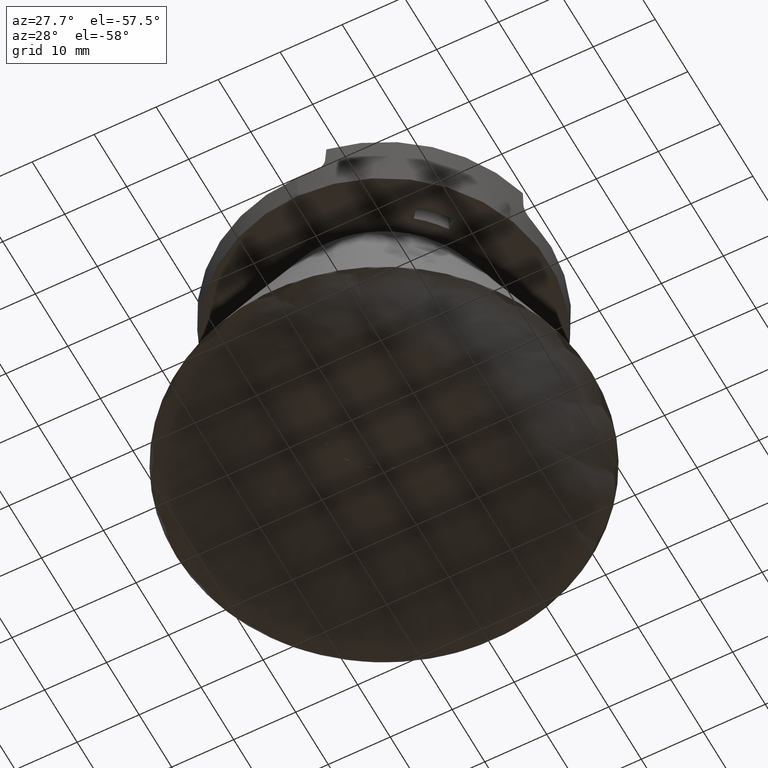
[diagram: clean part render]
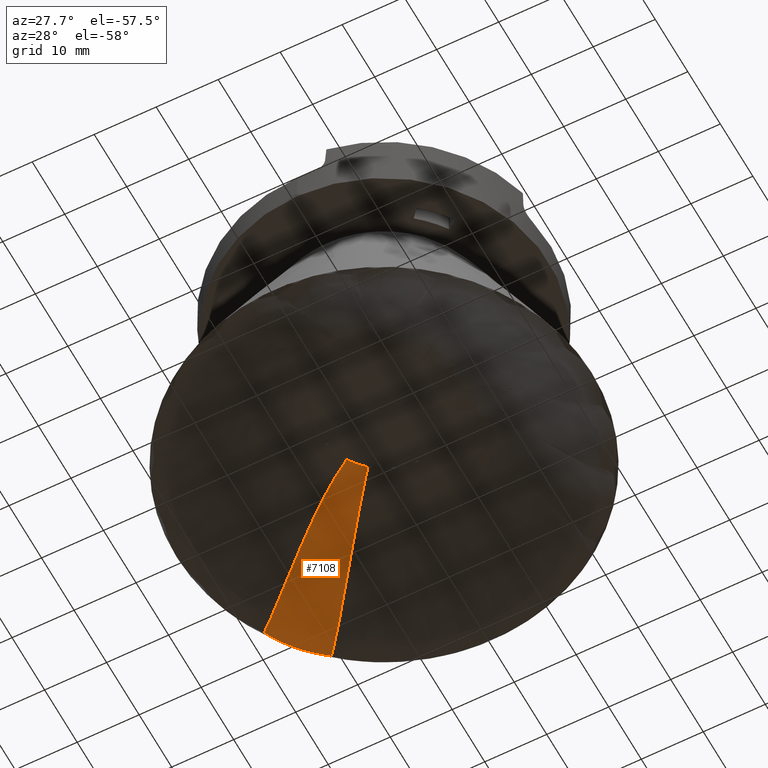
[diagram: same view with one face highlighted and labeled with its STEP entity id]
A machine part, auxiliary view. The second image highlights one B-rep face of the part: STEP entity #7108.
In plain terms, the highlighted face is a freeform B-spline surface patch.
Its self-contained STEP definition (entity closure, byte-faithful):
#61 = CARTESIAN_POINT ( 'NONE',  ( -7.451931950241363000, -6.977359682449465700, 24.00000000000001100 ) ) ;
#159 = CARTESIAN_POINT ( 'NONE',  ( -7.986065862173470400, -6.340803673977981200, 24.00000000000001400 ) ) ;
#524 = CARTESIAN_POINT ( 'NONE',  ( -20.61256006600509500, -19.48395648214994600, 37.81186950525387400 ) ) ;
#604 = CARTESIAN_POINT ( 'NONE',  ( -10.53422368254126500, -6.200838160505803400, 24.42143948671519400 ) ) ;
#696 = CARTESIAN_POINT ( 'NONE',  ( -22.83868224869295100, -13.45822711651566700, 34.66040913184525600 ) ) ;
#1203 = CARTESIAN_POINT ( 'NONE',  ( -6.647541966940536900, -7.727680457242454900, 24.05268427374969400 ) ) ;
#1418 = CARTESIAN_POINT ( 'NONE',  ( -8.764613175616997200, -5.204653238524492100, 24.05268427374969400 ) ) ;
#1458 = CARTESIAN_POINT ( 'NONE',  ( -21.19393652871518100, -24.49368781249510700, 39.39180819655563700 ) ) ;
#1568 = CARTESIAN_POINT ( 'NONE',  ( -13.84085859035317500, -16.29486297835242700, 29.90732477501512300 ) ) ;
#2170 = CARTESIAN_POINT ( 'NONE',  ( -28.25245156773059900, -16.91740970193194800, 39.61515855658598900 ) ) ;
#2463 = CARTESIAN_POINT ( 'NONE',  ( -7.064626316815426000, -7.368894177855226600, 24.01748694282373000 ) ) ;
#2716 = EDGE_LOOP ( 'NONE', ( #9637, #26513, #16576, #6810, #9943, #24172 ) ) ;
#2920 = CARTESIAN_POINT ( 'NONE',  ( -19.27499720263299900, -6.252571326929264700, 25.69935888278797300 ) ) ;
#2999 = CARTESIAN_POINT ( 'NONE',  ( -11.27007915859391900, -6.618422273990738300, 24.68382078541619200 ) ) ;
#3099 = CARTESIAN_POINT ( 'NONE',  ( -24.28605623423396800, -14.35838600116655300, 36.25082046820411800 ) ) ;
#3805 = VERTEX_POINT ( 'NONE', #13586 ) ;
#3860 = CARTESIAN_POINT ( 'NONE',  ( -20.66901636307686000, -23.93817648871310100, 38.96838497587688700 ) ) ;
#3965 = CARTESIAN_POINT ( 'NONE',  ( -12.07270003988478600, -14.23293756006455100, 27.73796040772611700 ) ) ;
#4056 = CARTESIAN_POINT ( 'NONE',  ( -26.23513009464560500, -20.85093765735345500, 39.00000000000000000 ) ) ;
#4082 = CARTESIAN_POINT ( 'NONE',  ( -25.66248884448588200, -21.53338492449893600, 38.99999999999999300 ) ) ;
#5330 = CARTESIAN_POINT ( 'NONE',  ( -13.25201817075617700, -14.55017836403556300, 24.15589425697410400 ) ) ;
#5419 = CARTESIAN_POINT ( 'NONE',  ( -12.70880508126319900, -7.439263454219373600, 25.32035916953121200 ) ) ;
#5459 = CARTESIAN_POINT ( 'NONE',  ( -7.808652132164918500, -6.552237124091199400, 24.00000000000000700 ) ) ;
#5516 = CARTESIAN_POINT ( 'NONE',  ( -25.39357046387102600, -15.05649351229425600, 37.40672678806231500 ) ) ;
#6264 = CARTESIAN_POINT ( 'NONE',  ( -19.85017457496253700, -23.06022347549832600, 38.13769535461057800 ) ) ;
#6364 = CARTESIAN_POINT ( 'NONE',  ( -22.32993162307256800, -24.45548902538810100, 39.42616226214670400 ) ) ;
#6368 = CARTESIAN_POINT ( 'NONE',  ( -10.19278934242035100, -12.01088311079944000, 25.86045026769083300 ) ) ;
#6810 = ORIENTED_EDGE ( 'NONE', *, *, #9127, .F. ) ;
#7108 = ADVANCED_FACE ( 'NONE', ( #21355 ), #29444, .F. ) ;
#7260 = CARTESIAN_POINT ( 'NONE',  ( -8.624967904946084100, -5.439815260496559700, 24.03518703873789200 ) ) ;
#7717 = CARTESIAN_POINT ( 'NONE',  ( -11.41575732337142500, -1.118589835439520500, 24.95773928514173100 ) ) ;
#7796 = CARTESIAN_POINT ( 'NONE',  ( -15.30112274767569100, -8.941856929638371200, 27.06859308905876900 ) ) ;
#7849 = B_SPLINE_CURVE_WITH_KNOTS ( 'NONE', 3,
 ( #26694, #10083, #14866, #604, #17240, #2999, #19611, #5419, #22020, #7796, #24429, #10186, #26792, #12595, #29183, #14970, #696, #17333, #3099, #19710, #5516, #22121, #7890, #24526, #10284, #26895, #12700, #29282 ),
 .UNSPECIFIED., .F., .F.,
 ( 4, 2, 2, 2, 2, 2, 2, 2, 2, 2, 2, 2, 2, 4 ),
 ( 5.666395304208661300E-016, 0.001767011362761908400, 0.002650517044142577900, 0.003534022725523247300, 0.007068045451045917900, 0.01060206817656858900, 0.01413609090209126200, 0.01767011362761392400, 0.02120413635313658800, 0.02297114771589791500, 0.02473815907865923500, 0.02650517044142055800, 0.02738867612280121800, 0.02827218180418187800 ),
 .UNSPECIFIED. ) ;
#7890 = CARTESIAN_POINT ( 'NONE',  ( -26.54811025790985500, -15.79646976346712300, 38.48944996035238800 ) ) ;
#8644 = CARTESIAN_POINT ( 'NONE',  ( -18.94066688742902100, -22.06771454410599300, 37.02631597382378500 ) ) ;
#8743 = CARTESIAN_POINT ( 'NONE',  ( -23.05893347229468300, -23.96768335394525100, 39.27271433132451500 ) ) ;
#8750 = CARTESIAN_POINT ( 'NONE',  ( -8.653294407840991900, -10.16479318029936600, 24.78370212819588800 ) ) ;
#9025 = B_SPLINE_CURVE_WITH_KNOTS ( 'NONE', 3,
 ( #28633, #7260, #26248, #14423, #159, #16791 ),
 .UNSPECIFIED., .F., .F.,
 ( 4, 2, 4 ),
 ( 0.001960043688144421900, 0.002781617606586539800, 0.003603191525028657600 ),
 .UNSPECIFIED. ) ;
#9127 = EDGE_CURVE ( 'NONE', #12919, #17982, #9025, .T. ) ;
#9637 = ORIENTED_EDGE ( 'NONE', *, *, #25569, .F. ) ;
#9943 = ORIENTED_EDGE ( 'NONE', *, *, #22676, .T. ) ;
#10007 = CARTESIAN_POINT ( 'NONE',  ( -26.93900756075138100, -20.21267640163266000, 38.72349801172714500 ) ) ;
#10083 = CARTESIAN_POINT ( 'NONE',  ( -9.281444207873590800, -5.494180344226237800, 24.10556549297107400 ) ) ;
#10105 = CARTESIAN_POINT ( 'NONE',  ( -6.279556309574836300, -8.194519778166020200, 23.64152275277335100 ) ) ;
#10186 = CARTESIAN_POINT ( 'NONE',  ( -17.68802421487390600, -10.34739143050296300, 29.15699180343184000 ) ) ;
#10284 = CARTESIAN_POINT ( 'NONE',  ( -27.37251161421093600, -16.33531417137547200, 39.11879068411898400 ) ) ;
#11033 = CARTESIAN_POINT ( 'NONE',  ( -18.07107453821067000, -21.10554461435312800, 35.85557279947834500 ) ) ;
#11135 = CARTESIAN_POINT ( 'NONE',  ( -24.42522799677163200, -22.83602694233466200, 39.07060055067019300 ) ) ;
#11143 = CARTESIAN_POINT ( 'NONE',  ( -8.116020426256838500, -9.515683923108667800, 24.50264204973599300 ) ) ;
#11651 = CARTESIAN_POINT ( 'NONE',  ( -25.66248884448588200, -21.53338492449893600, 38.99999999999999300 ) ) ;
#11780 = EDGE_CURVE ( 'NONE', #26912, #23924, #26111, .T. ) ;
#12120 = VERTEX_POINT ( 'NONE', #1203 ) ;
#12411 = CARTESIAN_POINT ( 'NONE',  ( -21.97068057836742800, -25.35299413173024900, 39.79966890645383200 ) ) ;
#12595 = CARTESIAN_POINT ( 'NONE',  ( -19.94631317876499200, -11.69707302005667600, 31.45464014280854300 ) ) ;
#12700 = CARTESIAN_POINT ( 'NONE',  ( -28.02217408263425800, -16.76490555196069500, 39.51463012185291000 ) ) ;
#12919 = VERTEX_POINT ( 'NONE', #1418 ) ;
#13441 = CARTESIAN_POINT ( 'NONE',  ( -16.66255364118949000, -19.52622984816320100, 33.85203765495946000 ) ) ;
#13536 = CARTESIAN_POINT ( 'NONE',  ( -25.37600834065941400, -21.87479909414232900, 38.99999999999999300 ) ) ;
#13543 = CARTESIAN_POINT ( 'NONE',  ( -7.390666762729726900, -8.635408698267903900, 24.20771523157613800 ) ) ;
#13586 = CARTESIAN_POINT ( 'NONE',  ( -21.56638296470598300, -24.88555597991767200, 39.61515855658607400 ) ) ;
#14047 = CARTESIAN_POINT ( 'NONE',  ( -27.58210095728311400, -18.55379927205798700, 39.28191040472712800 ) ) ;
#14334 = CARTESIAN_POINT ( 'NONE',  ( -7.808652132164918500, -6.552237124091199400, 24.00000000000000700 ) ) ;
#14423 = CARTESIAN_POINT ( 'NONE',  ( -8.156416128038133100, -6.120117762398238300, 24.00443321388629100 ) ) ;
#14790 = CARTESIAN_POINT ( 'NONE',  ( -22.76728489548578000, -16.91605542556436200, 37.81186950525387400 ) ) ;
#14866 = CARTESIAN_POINT ( 'NONE',  ( -9.787795162553685200, -5.778976518386695500, 24.20775589380851800 ) ) ;
#14970 = CARTESIAN_POINT ( 'NONE',  ( -22.12296146755683400, -13.01869133351174300, 33.85198921249791200 ) ) ;
#15605 = EDGE_CURVE ( 'NONE', #17982, #12120, #22777, .T. ) ;
#15699 = CARTESIAN_POINT ( 'NONE',  ( -21.56638296470598300, -24.88555597991767200, 39.61515855658607400 ) ) ;
#15807 = CARTESIAN_POINT ( 'NONE',  ( -14.98305654999512300, -17.61216286674772700, 31.45470646478208100 ) ) ;
#15911 = CARTESIAN_POINT ( 'NONE',  ( -6.647541966940536900, -7.727680457242454900, 24.05268427374969400 ) ) ;
#16405 = CARTESIAN_POINT ( 'NONE',  ( -28.10634262299095500, -17.33253325262206700, 39.52024679499555000 ) ) ;
#16576 = ORIENTED_EDGE ( 'NONE', *, *, #15605, .F. ) ;
#16791 = CARTESIAN_POINT ( 'NONE',  ( -7.808652132164918500, -6.552237124091199400, 24.00000000000000700 ) ) ;
#17160 = CARTESIAN_POINT ( 'NONE',  ( -18.22243726298033900, -21.61823403594842900, 38.79631210744406600 ) ) ;
#17240 = CARTESIAN_POINT ( 'NONE',  ( -10.78084400596857300, -6.340561201712602300, 24.50277541826165300 ) ) ;
#17333 = CARTESIAN_POINT ( 'NONE',  ( -23.92288314814280200, -14.13157625245553100, 35.85554007028128600 ) ) ;
#17669 = B_SPLINE_CURVE_WITH_KNOTS ( 'NONE', 3,
 ( #15699, #29930, #1458, #18093, #3860, #20461, #6264, #22880, #8644, #25271, #11033, #27648, #13441, #30032, #15807, #1568, #18203, #3965, #20570, #6368, #22986, #8750, #25371, #11143, #27748, #13543, #30139, #15911 ),
 .UNSPECIFIED., .F., .F.,
 ( 4, 2, 2, 2, 2, 2, 2, 2, 2, 2, 2, 2, 2, 4 ),
 ( 3.049328091328272700E-015, 0.0008735591537225795800, 0.001747118307442109900, 0.003494236614881158500, 0.005241354922320208200, 0.006988473229759257000, 0.01048270984463736500, 0.01397694645951547500, 0.01747118307439358300, 0.02096541968927169100, 0.02445965630414979900, 0.02533321545786932800, 0.02620677461158885800, 0.02795389291902790700 ),
 .UNSPECIFIED. ) ;
#17982 = VERTEX_POINT ( 'NONE', #5459 ) ;
#18093 = CARTESIAN_POINT ( 'NONE',  ( -20.84033603329739000, -24.12006965755396600, 39.11879499834947200 ) ) ;
#18203 = CARTESIAN_POINT ( 'NONE',  ( -13.26173699955787400, -15.62255891743847000, 29.15705687887682600 ) ) ;
#19076 = CARTESIAN_POINT ( 'NONE',  ( -6.647541966940536900, -7.727680457242454900, 24.05268427374969400 ) ) ;
#19530 = CARTESIAN_POINT ( 'NONE',  ( -16.63031726637358800, -10.52407827997571800, 24.15589425697407900 ) ) ;
#19611 = CARTESIAN_POINT ( 'NONE',  ( -11.51352665029155800, -6.757036075137309100, 24.78392812430975300 ) ) ;
#19710 = CARTESIAN_POINT ( 'NONE',  ( -25.02144635428491900, -14.82088307894749400, 37.02629301832499900 ) ) ;
#20341 = CARTESIAN_POINT ( 'NONE',  ( -26.73447588860283400, -20.11962883199697300, 39.05641079755785200 ) ) ;
#20461 = CARTESIAN_POINT ( 'NONE',  ( -20.16652669326734300, -23.40176717640567000, 38.48946012115828800 ) ) ;
#20562 = CARTESIAN_POINT ( 'NONE',  ( -21.56638296470598300, -24.88555597991767200, 39.61515855658607400 ) ) ;
#20570 = CARTESIAN_POINT ( 'NONE',  ( -11.46301080534060900, -13.51591414986229000, 27.06857575763390900 ) ) ;
#21355 = FACE_OUTER_BOUND ( 'NONE', #2716, .T. ) ;
#21941 = CARTESIAN_POINT ( 'NONE',  ( -9.504648857794249400, -17.89641906778782900, 25.69935888278802200 ) ) ;
#22020 = CARTESIAN_POINT ( 'NONE',  ( -13.59853979107385200, -7.952368327260963100, 25.86056381161560200 ) ) ;
#22045 = B_SPLINE_CURVE_WITH_KNOTS ( 'NONE', 3,
 ( #20562, #6364, #8743, #25365, #11135, #27743, #13536, #30133 ),
 .UNSPECIFIED., .F., .F.,
 ( 4, 2, 2, 4 ),
 ( 0.0007042587947961141600, 0.003373889748260220400, 0.004708705224992278800, 0.006043520701724337600 ),
 .UNSPECIFIED. ) ;
#22121 = CARTESIAN_POINT ( 'NONE',  ( -26.15681887707630100, -15.54423062154822200, 38.13768209047812300 ) ) ;
#22676 = EDGE_CURVE ( 'NONE', #12919, #23924, #7849, .T. ) ;
#22777 = B_SPLINE_CURVE_WITH_KNOTS ( 'NONE', 3,
 ( #14334, #61, #2463, #19076 ),
 .UNSPECIFIED., .F., .F.,
 ( 4, 4 ),
 ( 0.003603191525028657600, 0.005255104246981437100 ),
 .UNSPECIFIED. ) ;
#22880 = CARTESIAN_POINT ( 'NONE',  ( -19.23731459077517400, -22.39326969920999500, 37.40674647053547400 ) ) ;
#22986 = CARTESIAN_POINT ( 'NONE',  ( -9.532896025888668100, -11.22366590620469800, 25.32018400032549000 ) ) ;
#23924 = VERTEX_POINT ( 'NONE', #26294 ) ;
#24172 = ORIENTED_EDGE ( 'NONE', *, *, #11780, .F. ) ;
#24244 = CARTESIAN_POINT ( 'NONE',  ( -28.78299382753682100, -17.23439534315543400, 39.79966890645380300 ) ) ;
#24355 = CARTESIAN_POINT ( 'NONE',  ( -9.160460119464289600, -4.761192312811892300, 23.64152275277333000 ) ) ;
#24429 = CARTESIAN_POINT ( 'NONE',  ( -16.11308438503088100, -9.417750172912160900, 27.73794022378512000 ) ) ;
#24526 = CARTESIAN_POINT ( 'NONE',  ( -27.16363100375402000, -16.19818170981140800, 38.96837926281062200 ) ) ;
#25271 = CARTESIAN_POINT ( 'NONE',  ( -18.35750092787581900, -21.42381291987505800, 36.25084994244011900 ) ) ;
#25365 = CARTESIAN_POINT ( 'NONE',  ( -24.09134248264708900, -23.13202596565336200, 39.11233206393289700 ) ) ;
#25371 = CARTESIAN_POINT ( 'NONE',  ( -8.474546169260959200, -9.949154381502634000, 24.68362932533164100 ) ) ;
#25569 = EDGE_CURVE ( 'NONE', #3805, #26912, #22045, .T. ) ;
#26111 = B_SPLINE_CURVE_WITH_KNOTS ( 'NONE', 3,
 ( #11651, #4056, #20341, #28249, #14047, #30625, #16405, #2170 ),
 .UNSPECIFIED., .F., .F.,
 ( 4, 2, 2, 4 ),
 ( 0.006043520701724337600, 0.008711661790275921800, 0.01004573233455171100, 0.01137980287882750200 ),
 .UNSPECIFIED. ) ;
#26248 = CARTESIAN_POINT ( 'NONE',  ( -8.475500420274185500, -5.669996305578610700, 24.02204281210947200 ) ) ;
#26294 = CARTESIAN_POINT ( 'NONE',  ( -28.25245156773059900, -16.91740970193194800, 39.61515855658598900 ) ) ;
#26513 = ORIENTED_EDGE ( 'NONE', *, *, #26527, .T. ) ;
#26527 = EDGE_CURVE ( 'NONE', #3805, #12120, #17669, .T. ) ;
#26610 = CARTESIAN_POINT ( 'NONE',  ( -24.58351000053504300, -23.01984908136739300, 38.72349801172715900 ) ) ;
#26694 = CARTESIAN_POINT ( 'NONE',  ( -8.764613175616997200, -5.204653238524492100, 24.05268427374969400 ) ) ;
#26713 = CARTESIAN_POINT ( 'NONE',  ( -3.083921398272873000, -11.04808523208130000, 24.95773928514177000 ) ) ;
#26792 = CARTESIAN_POINT ( 'NONE',  ( -18.45067442328055300, -10.80096814781986800, 29.90725176803506000 ) ) ;
#26895 = CARTESIAN_POINT ( 'NONE',  ( -27.80185879923776300, -16.61866655988405500, 39.39180635792562400 ) ) ;
#26912 = VERTEX_POINT ( 'NONE', #4082 ) ;
#27648 = CARTESIAN_POINT ( 'NONE',  ( -17.21969147034236200, -20.15474788665697800, 34.66045141062137000 ) ) ;
#27743 = CARTESIAN_POINT ( 'NONE',  ( -25.07019349352467700, -22.20497255161420800, 39.01414237198055400 ) ) ;
#27748 = CARTESIAN_POINT ( 'NONE',  ( -7.935629691394724200, -9.297114626555194100, 24.42133202144575700 ) ) ;
#28249 = CARTESIAN_POINT ( 'NONE',  ( -27.38230813995075200, -18.95503070831124500, 39.21594549743858200 ) ) ;
#28633 = CARTESIAN_POINT ( 'NONE',  ( -8.764613175616997200, -5.204653238524492100, 24.05268427374969400 ) ) ;
#29001 = CARTESIAN_POINT ( 'NONE',  ( -24.45409750840101600, -14.19163055064175600, 38.79631210744404500 ) ) ;
#29183 = CARTESIAN_POINT ( 'NONE',  ( -20.67668185307808300, -12.13802717396051500, 32.24956834300664400 ) ) ;
#29282 = CARTESIAN_POINT ( 'NONE',  ( -28.25245156773059900, -16.91740970193194800, 39.61515855658598900 ) ) ;
#29444 =( BOUNDED_SURFACE ( )  B_SPLINE_SURFACE ( 3, 3, ( 
 ( #24244, #10007, #26610, #12411 ),
 ( #29001, #14790, #524, #17160 ),
 ( #2920, #19530, #5330, #21941 ),
 ( #7717, #24355, #10105, #26713 ) ),
 .UNSPECIFIED., .F., .F., .F. ) 
 B_SPLINE_SURFACE_WITH_KNOTS ( ( 4, 4 ),
 ( 4, 4 ),
 ( 0.0000000000000000000, 1.009796491166669700 ),
 ( 0.0000000000000000000, 1.000000000000000000 ),
 .UNSPECIFIED. ) 
 GEOMETRIC_REPRESENTATION_ITEM ( )  RATIONAL_B_SPLINE_SURFACE ( (
 ( 1.000000000000000000, 0.9640303269292728200, 0.9640303269292728200, 1.000000000000000000),
 ( 1.000000000000000000, 0.9640303269292728200, 0.9640303269292728200, 1.000000000000000000),
 ( 1.000000000000000000, 0.9640303269292728200, 0.9640303269292728200, 1.000000000000000000),
 ( 1.000000000000000000, 0.9640303269292728200, 0.9640303269292728200, 1.000000000000000000) ) ) 
 REPRESENTATION_ITEM ( '' )  SURFACE ( )  );
#29930 = CARTESIAN_POINT ( 'NONE',  ( -21.37620985843529200, -24.68526049965359100, 39.51463087704381400 ) ) ;
#30032 = CARTESIAN_POINT ( 'NONE',  ( -15.54413346978992800, -18.25485835344903100, 32.24962824037049800 ) ) ;
#30133 = CARTESIAN_POINT ( 'NONE',  ( -25.66248884448588200, -21.53338492449893600, 38.99999999999999300 ) ) ;
#30139 = CARTESIAN_POINT ( 'NONE',  ( -7.022342534927094700, -8.186292360737990500, 24.10555495026253000 ) ) ;
#30625 = CARTESIAN_POINT ( 'NONE',  ( -27.94376056159091300, -17.74299748186162500, 39.43405280220491000 ) ) ;